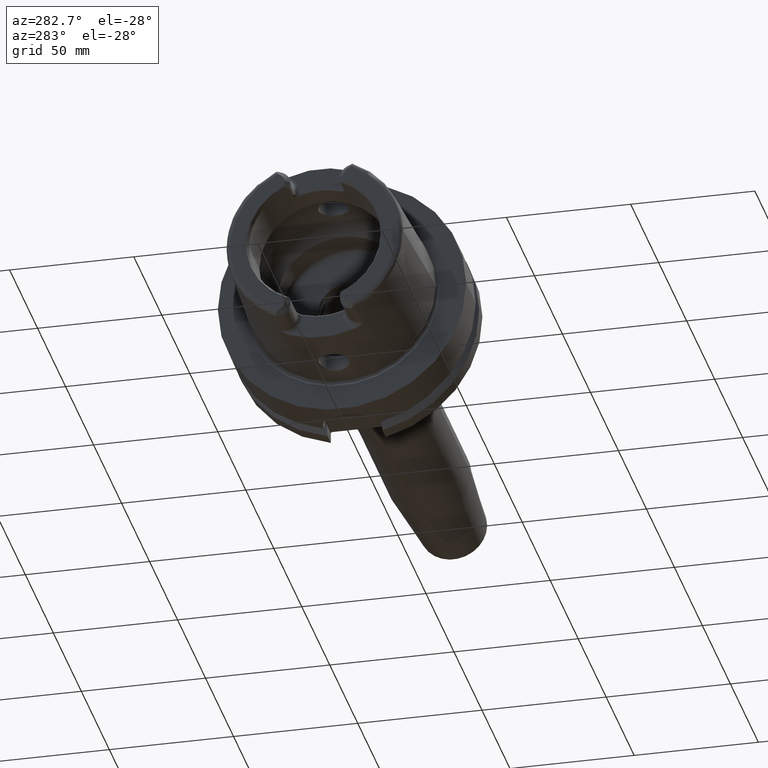
[diagram: clean part render]
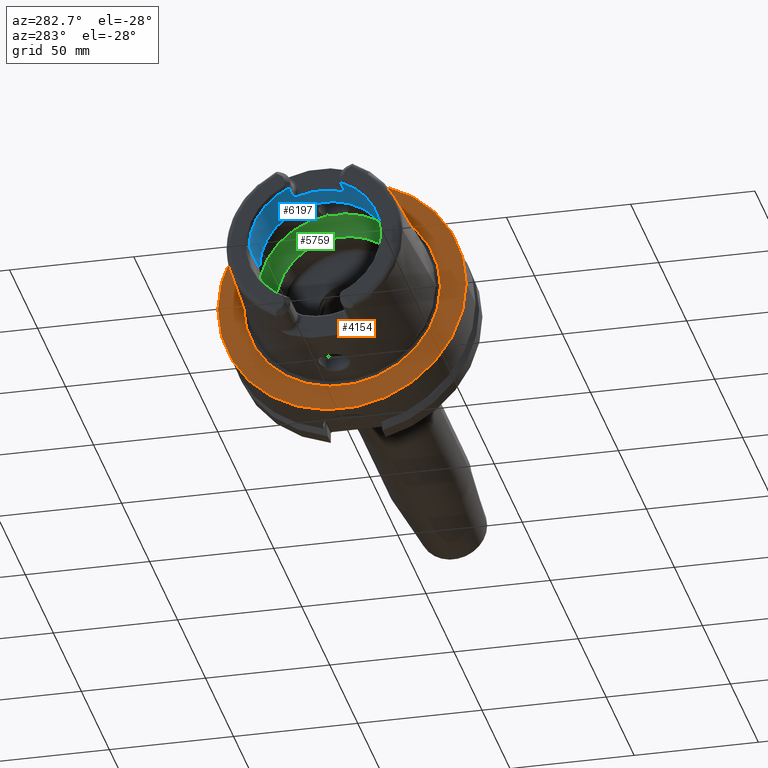
[diagram: same view with three faces highlighted in distinct colors, each labeled with its STEP entity id]
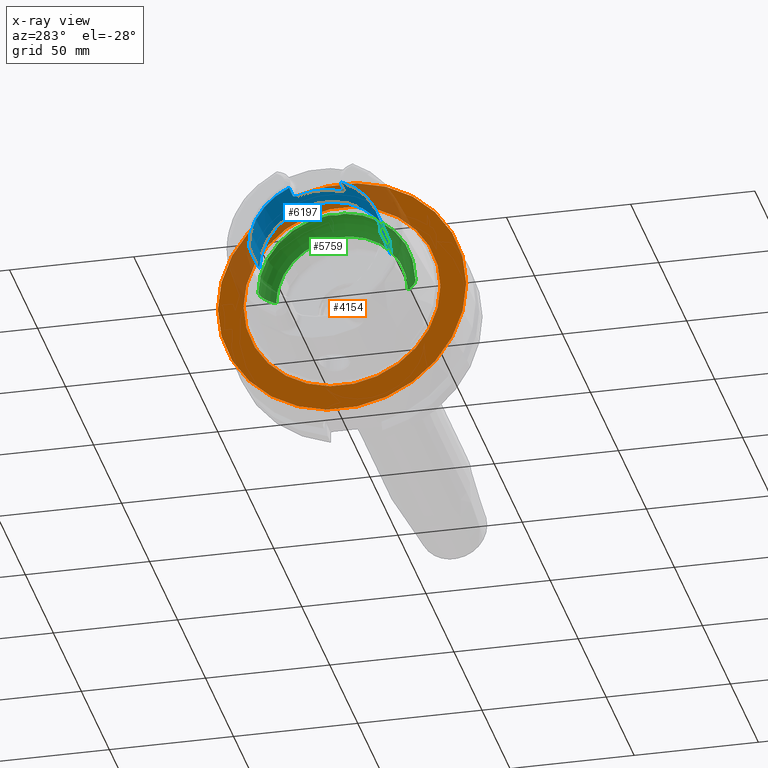
[diagram: x-ray of the same camera — body ghosted, the three highlighted faces saturated]
A machine part, auxiliary view with three faces highlighted in distinct colors.
The next image is the same camera in x-ray (body ghosted, the three faces saturated) — at least one of them is partly hidden behind the body in this view.
Their STEP definitions:

[orange] entity #4154 — the highlighted planar face has unit normal (1, 0, 0).
#905=CARTESIAN_POINT('',(2.842170943040E-14,0.E0,0.E0));
#906=DIRECTION('',(1.E0,0.E0,0.E0));
#907=DIRECTION('',(0.E0,1.E0,0.E0));
#908=AXIS2_PLACEMENT_3D('',#905,#906,#907);
#910=CARTESIAN_POINT('',(2.842170943040E-14,0.E0,0.E0));
#911=DIRECTION('',(-1.E0,0.E0,0.E0));
#912=DIRECTION('',(0.E0,1.E0,0.E0));
#913=AXIS2_PLACEMENT_3D('',#910,#911,#912);
#915=CARTESIAN_POINT('',(0.E0,0.E0,0.E0));
#916=DIRECTION('',(-1.E0,0.E0,0.E0));
#917=DIRECTION('',(0.E0,-1.E0,0.E0));
#918=AXIS2_PLACEMENT_3D('',#915,#916,#917);
#920=CARTESIAN_POINT('',(0.E0,0.E0,0.E0));
#921=DIRECTION('',(-1.E0,0.E0,0.E0));
#922=DIRECTION('',(0.E0,1.E0,0.E0));
#923=AXIS2_PLACEMENT_3D('',#920,#921,#922);
#2713=CARTESIAN_POINT('',(2.842170943040E-14,5.E1,0.E0));
#2714=CARTESIAN_POINT('',(2.842170943040E-14,-5.E1,0.E0));
#2715=VERTEX_POINT('',#2713);
#2716=VERTEX_POINT('',#2714);
#2741=CARTESIAN_POINT('',(0.E0,-3.963225E1,0.E0));
#2742=VERTEX_POINT('',#2741);
#2743=CARTESIAN_POINT('',(0.E0,3.963225E1,0.E0));
#2744=VERTEX_POINT('',#2743);
#4139=CARTESIAN_POINT('',(0.E0,0.E0,0.E0));
#4140=DIRECTION('',(1.E0,0.E0,0.E0));
#4141=DIRECTION('',(0.E0,-1.E0,0.E0));
#4142=AXIS2_PLACEMENT_3D('',#4139,#4140,#4141);
#4143=PLANE('',#4142);
#4145=ORIENTED_EDGE('',*,*,#4144,.T.);
#4147=ORIENTED_EDGE('',*,*,#4146,.F.);
#4148=EDGE_LOOP('',(#4145,#4147));
#4149=FACE_OUTER_BOUND('',#4148,.F.);
#4150=ORIENTED_EDGE('',*,*,#4134,.T.);
#4151=ORIENTED_EDGE('',*,*,#4118,.T.);
#4152=EDGE_LOOP('',(#4150,#4151));
#4153=FACE_BOUND('',#4152,.F.);
#4154=ADVANCED_FACE('',(#4149,#4153),#4143,.F.);
#909=CIRCLE('',#908,5.E1);
#914=CIRCLE('',#913,5.E1);
#919=CIRCLE('',#918,3.963225E1);
#924=CIRCLE('',#923,3.963225E1);
#4118=EDGE_CURVE('',#2744,#2742,#924,.T.);
#4134=EDGE_CURVE('',#2742,#2744,#919,.T.);
#4144=EDGE_CURVE('',#2715,#2716,#909,.T.);
#4146=EDGE_CURVE('',#2715,#2716,#914,.T.);

[blue] entity #6197 — the highlighted cylindrical surface (partial cylindrical patch) has radius 26.5 mm, axis along (1, 0, 0).
#165=CARTESIAN_POINT('',(-4.85E1,1.051E1,2.432673220965E1));
#167=CARTESIAN_POINT('',(-4.85E1,0.E0,0.E0));
#168=DIRECTION('',(1.E0,0.E0,0.E0));
#169=DIRECTION('',(0.E0,1.E0,0.E0));
#170=AXIS2_PLACEMENT_3D('',#167,#168,#169);
#187=CARTESIAN_POINT('',(-4.85E1,0.E0,0.E0));
#188=DIRECTION('',(1.E0,0.E0,0.E0));
#189=DIRECTION('',(0.E0,-3.966037735849E-1,9.179898947038E-1));
#190=AXIS2_PLACEMENT_3D('',#187,#188,#189);
#192=CARTESIAN_POINT('',(-4.85E1,-1.051E1,2.432673220965E1));
#513=DIRECTION('',(-1.E0,0.E0,0.E0));
#514=VECTOR('',#513,1.849662432703E1);
#515=CARTESIAN_POINT('',(-3.000337567297E1,2.65E1,0.E0));
#516=LINE('',#515,#514);
#522=DIRECTION('',(-1.E0,0.E0,0.E0));
#523=VECTOR('',#522,1.849662432703E1);
#524=CARTESIAN_POINT('',(-3.000337567297E1,-2.65E1,0.E0));
#525=LINE('',#524,#523);
#2496=DIRECTION('',(1.E0,0.E0,0.E0));
#2497=VECTOR('',#2496,6.380229667746E0);
#2498=CARTESIAN_POINT('',(-4.838022966775E1,1.039022966775E1,2.437812805470E1));
#2499=LINE('',#2498,#2497);
#2500=CARTESIAN_POINT('',(-3.971132486541E1,8.01E0,2.526044140549E1));
#2501=CARTESIAN_POINT('',(-3.970878365387E1,8.120563234658E0,2.522538218006E1));
#2502=CARTESIAN_POINT('',(-3.971906599640E1,8.340498761E0,2.515406323082E1));
#2503=CARTESIAN_POINT('',(-3.978267622202E1,8.672586520936E0,2.504149237513E1));
#2504=CARTESIAN_POINT('',(-3.989268945815E1,8.989467647893E0,2.492938353432E1));
#2505=CARTESIAN_POINT('',(-4.004052322956E1,9.277750297847E0,2.482340953473E1));
#2506=CARTESIAN_POINT('',(-4.022199090024E1,9.537479373845E0,2.472468297046E1));
#2507=CARTESIAN_POINT('',(-4.043924040036E1,9.773195748073E0,2.463237051391E1));
#2508=CARTESIAN_POINT('',(-4.069196362011E1,9.980705213938E0,2.454892857931E1));
#2509=CARTESIAN_POINT('',(-4.098453186625E1,1.015759575717E1,2.447617541728E1));
#2510=CARTESIAN_POINT('',(-4.132143240488E1,1.029570459017E1,2.441829554688E1));
#2511=CARTESIAN_POINT('',(-4.167918985613E1,1.037618705973E1,2.438412368561E1));
#2512=CARTESIAN_POINT('',(-4.189481839478E1,1.039022966775E1,2.437812805470E1));
#2513=CARTESIAN_POINT('',(-4.2E1,1.039022966775E1,2.437812805470E1));
#2515=CARTESIAN_POINT('',(-3.971132486541E1,-8.01E0,2.526044140549E1));
#2516=CARTESIAN_POINT('',(-3.971132486541E1,-7.271271578955E0,
2.549468967366E1));
#2517=CARTESIAN_POINT('',(-3.971132486546E1,-5.773250992792E0,
2.589833317849E1));
#2518=CARTESIAN_POINT('',(-3.971132486544E1,-3.481810319461E0,
2.630458298809E1));
#2519=CARTESIAN_POINT('',(-3.971132486544E1,-1.163586982585E0,
2.650849211583E1));
#2520=CARTESIAN_POINT('',(-3.971132486544E1,1.163586982585E0,2.650849211583E1));
#2521=CARTESIAN_POINT('',(-3.971132486544E1,3.481810319461E0,2.630458298809E1));
#2522=CARTESIAN_POINT('',(-3.971132486546E1,5.773250992791E0,2.589833317849E1));
#2523=CARTESIAN_POINT('',(-3.971132486541E1,7.271271578958E0,2.549468967366E1));
#2524=CARTESIAN_POINT('',(-3.971132486541E1,8.01E0,2.526044140549E1));
#2526=CARTESIAN_POINT('',(-4.2E1,-1.039022966775E1,2.437812805470E1));
#2527=CARTESIAN_POINT('',(-4.189375760304E1,-1.039022966775E1,
2.437812805470E1));
#2528=CARTESIAN_POINT('',(-4.167635124759E1,-1.037592175927E1,
2.438423721529E1));
#2529=CARTESIAN_POINT('',(-4.131623052643E1,-1.029415408513E1,
2.441895189414E1));
#2530=CARTESIAN_POINT('',(-4.097947032639E1,-1.015497495082E1,
2.447726388108E1));
#2531=CARTESIAN_POINT('',(-4.068903934051E1,-9.978495762119E0,
2.454982411868E1));
#2532=CARTESIAN_POINT('',(-4.043805179144E1,-9.771970406757E0,
2.463285308238E1));
#2533=CARTESIAN_POINT('',(-4.022178538202E1,-9.537157318169E0,
2.472480442904E1));
#2534=CARTESIAN_POINT('',(-4.004048499348E1,-9.277715471543E0,
2.482342368645E1));
#2535=CARTESIAN_POINT('',(-3.989237648633E1,-8.988811706632E0,
2.492962282131E1));
#2536=CARTESIAN_POINT('',(-3.978230284625E1,-8.671343229942E0,
2.504192722240E1));
#2537=CARTESIAN_POINT('',(-3.971884880625E1,-8.338547582645E0,
2.515470883480E1));
#2538=CARTESIAN_POINT('',(-3.970880260289E1,-8.119738798873E0,
2.522564360584E1));
#2539=CARTESIAN_POINT('',(-3.971132486541E1,-8.01E0,2.526044140549E1));
#2541=DIRECTION('',(1.E0,0.E0,0.E0));
#2542=VECTOR('',#2541,6.380229667746E0);
#2543=CARTESIAN_POINT('',(-4.838022966775E1,-1.039022966775E1,
2.437812805470E1));
#2544=LINE('',#2543,#2542);
#2545=CARTESIAN_POINT('',(-4.838022966775E1,-1.039022966775E1,
2.437812805470E1));
#2546=CARTESIAN_POINT('',(-4.842017594144E1,-1.043017594144E1,
2.436110250799E1));
#2547=CARTESIAN_POINT('',(-4.846009940760E1,-1.047009940760E1,
2.434397066250E1));
#2548=CARTESIAN_POINT('',(-4.85E1,-1.051E1,2.432673220965E1));
#2550=CARTESIAN_POINT('',(-3.000337567297E1,0.E0,0.E0));
#2551=DIRECTION('',(1.E0,0.E0,0.E0));
#2552=DIRECTION('',(0.E0,1.E0,0.E0));
#2553=AXIS2_PLACEMENT_3D('',#2550,#2551,#2552);
#2555=CARTESIAN_POINT('',(-4.85E1,1.051E1,2.432673220965E1));
#2556=CARTESIAN_POINT('',(-4.846009940760E1,1.047009940760E1,2.434397066250E1));
#2557=CARTESIAN_POINT('',(-4.842017594144E1,1.043017594144E1,2.436110250799E1));
#2558=CARTESIAN_POINT('',(-4.838022966775E1,1.039022966775E1,2.437812805470E1));
#2761=CARTESIAN_POINT('',(-3.000337567297E1,2.65E1,0.E0));
#2762=VERTEX_POINT('',#2761);
#2763=CARTESIAN_POINT('',(-4.85E1,2.65E1,0.E0));
#2764=VERTEX_POINT('',#2763);
#2773=CARTESIAN_POINT('',(-3.000337567297E1,-2.65E1,0.E0));
#2774=VERTEX_POINT('',#2773);
#2775=CARTESIAN_POINT('',(-4.85E1,-2.65E1,0.E0));
#2776=VERTEX_POINT('',#2775);
#2817=VERTEX_POINT('',#165);
#2832=VERTEX_POINT('',#192);
#2845=CARTESIAN_POINT('',(-4.2E1,1.039022966775E1,2.437812805470E1));
#2846=VERTEX_POINT('',#2845);
#2847=CARTESIAN_POINT('',(-3.971132486541E1,8.01E0,2.526044140549E1));
#2848=VERTEX_POINT('',#2847);
#2849=CARTESIAN_POINT('',(-4.2E1,-1.039022966775E1,2.437812805470E1));
#2850=VERTEX_POINT('',#2849);
#2851=CARTESIAN_POINT('',(-3.971132486541E1,-8.01E0,2.526044140549E1));
#2852=VERTEX_POINT('',#2851);
#2853=CARTESIAN_POINT('',(-4.838022966775E1,1.039022966775E1,2.437812805470E1));
#2854=VERTEX_POINT('',#2853);
#2855=CARTESIAN_POINT('',(-4.838022966775E1,-1.039022966775E1,
2.437812805470E1));
#2856=VERTEX_POINT('',#2855);
#6173=CARTESIAN_POINT('',(-5.3125E1,0.E0,0.E0));
#6174=DIRECTION('',(1.E0,0.E0,0.E0));
#6175=DIRECTION('',(0.E0,-1.E0,0.E0));
#6176=AXIS2_PLACEMENT_3D('',#6173,#6174,#6175);
#6177=CYLINDRICAL_SURFACE('',#6176,2.65E1);
#6178=ORIENTED_EDGE('',*,*,#3375,.T.);
#6180=ORIENTED_EDGE('',*,*,#6179,.F.);
#6182=ORIENTED_EDGE('',*,*,#6181,.F.);
#6184=ORIENTED_EDGE('',*,*,#6183,.F.);
#6186=ORIENTED_EDGE('',*,*,#6185,.F.);
#6188=ORIENTED_EDGE('',*,*,#6187,.T.);
#6189=ORIENTED_EDGE('',*,*,#3340,.T.);
#6190=ORIENTED_EDGE('',*,*,#3602,.F.);
#6191=ORIENTED_EDGE('',*,*,#6153,.F.);
#6192=ORIENTED_EDGE('',*,*,#3598,.T.);
#6193=ORIENTED_EDGE('',*,*,#3324,.T.);
#6194=ORIENTED_EDGE('',*,*,#3355,.T.);
#6195=EDGE_LOOP('',(#6178,#6180,#6182,#6184,#6186,#6188,#6189,#6190,#6191,#6192,
#6193,#6194));
#6196=FACE_OUTER_BOUND('',#6195,.F.);
#6197=ADVANCED_FACE('',(#6196),#6177,.F.);
#171=CIRCLE('',#170,2.65E1);
#191=CIRCLE('',#190,2.65E1);
#2514=B_SPLINE_CURVE_WITH_KNOTS('',3,(#2500,#2501,#2502,#2503,#2504,#2505,#2506,
#2507,#2508,#2509,#2510,#2511,#2512,#2513),.UNSPECIFIED.,.F.,.F.,(4,1,1,1,1,1,1,
1,1,1,1,4),(0.E0,9.090909090909E-2,1.818181818182E-1,2.727272727273E-1,
3.636363636364E-1,4.545454545455E-1,5.454545454545E-1,6.363636363636E-1,
7.272727272727E-1,8.181818181818E-1,9.090909090909E-1,1.E0),.UNSPECIFIED.);
#2525=B_SPLINE_CURVE_WITH_KNOTS('',3,(#2515,#2516,#2517,#2518,#2519,#2520,#2521,
#2522,#2523,#2524),.UNSPECIFIED.,.F.,.F.,(4,1,1,1,1,1,1,4),(0.E0,
1.428571428571E-1,2.857142857143E-1,4.285714285714E-1,5.714285714286E-1,
7.142857142857E-1,8.571428571429E-1,1.E0),.UNSPECIFIED.);
#2540=B_SPLINE_CURVE_WITH_KNOTS('',3,(#2526,#2527,#2528,#2529,#2530,#2531,#2532,
#2533,#2534,#2535,#2536,#2537,#2538,#2539),.UNSPECIFIED.,.F.,.F.,(4,1,1,1,1,1,1,
1,1,1,1,4),(0.E0,9.090909090909E-2,1.818181818182E-1,2.727272727273E-1,
3.636363636364E-1,4.545454545455E-1,5.454545454545E-1,6.363636363636E-1,
7.272727272727E-1,8.181818181818E-1,9.090909090909E-1,1.E0),.UNSPECIFIED.);
#2549=B_SPLINE_CURVE_WITH_KNOTS('',3,(#2545,#2546,#2547,#2548),.UNSPECIFIED.,
.F.,.F.,(4,4),(0.E0,1.E0),.UNSPECIFIED.);
#2554=CIRCLE('',#2553,2.65E1);
#2559=B_SPLINE_CURVE_WITH_KNOTS('',3,(#2555,#2556,#2557,#2558),.UNSPECIFIED.,
.F.,.F.,(4,4),(0.E0,1.E0),.UNSPECIFIED.);
#3324=EDGE_CURVE('',#2764,#2817,#171,.T.);
#3340=EDGE_CURVE('',#2832,#2776,#191,.T.);
#3355=EDGE_CURVE('',#2817,#2854,#2559,.T.);
#3375=EDGE_CURVE('',#2854,#2846,#2499,.T.);
#3598=EDGE_CURVE('',#2762,#2764,#516,.T.);
#3602=EDGE_CURVE('',#2774,#2776,#525,.T.);
#6153=EDGE_CURVE('',#2762,#2774,#2554,.T.);
#6179=EDGE_CURVE('',#2848,#2846,#2514,.T.);
#6181=EDGE_CURVE('',#2852,#2848,#2525,.T.);
#6183=EDGE_CURVE('',#2850,#2852,#2540,.T.);
#6185=EDGE_CURVE('',#2856,#2850,#2544,.T.);
#6187=EDGE_CURVE('',#2856,#2832,#2549,.T.);

[green] entity #5759 — the highlighted toroidal blend (fillet) surface has major radius 19.5 mm and minor (blend) radius 12 mm.
#2082=CARTESIAN_POINT('',(-9.E0,0.E0,3.147008518506E1));
#2083=CARTESIAN_POINT('',(-9.E0,2.141252053900E-1,3.147008518506E1));
#2084=CARTESIAN_POINT('',(-9.022897579641E0,6.436731047292E-1,
3.146736073712E1));
#2085=CARTESIAN_POINT('',(-9.127427069178E0,1.286248325661E0,3.145454181001E1));
#2086=CARTESIAN_POINT('',(-9.301031145484E0,1.913730198969E0,3.143197920586E1));
#2087=CARTESIAN_POINT('',(-9.539946842554E0,2.515068696018E0,3.139832080387E1));
#2088=CARTESIAN_POINT('',(-9.738529982809E0,2.891645116602E0,3.136752560017E1));
#2089=CARTESIAN_POINT('',(-9.846794344809E0,3.073185883624E0,3.134972932139E1));
#2091=CARTESIAN_POINT('',(-9.846794344809E0,-3.073185883624E0,
3.134972932139E1));
#2092=CARTESIAN_POINT('',(-9.738534471789E0,-2.891652643851E0,
3.136752486228E1));
#2093=CARTESIAN_POINT('',(-9.539946477828E0,-2.515078628379E0,
3.139832107651E1));
#2094=CARTESIAN_POINT('',(-9.300974895981E0,-1.913573808680E0,
3.143198691417E1));
#2095=CARTESIAN_POINT('',(-9.127396838585E0,-1.286102505522E0,
3.145454553504E1));
#2096=CARTESIAN_POINT('',(-9.022886850943E0,-6.435548392987E-1,
3.146736203025E1));
#2097=CARTESIAN_POINT('',(-9.E0,-2.140793620984E-1,3.147008518506E1));
#2098=CARTESIAN_POINT('',(-9.E0,0.E0,3.147008518506E1));
#2100=CARTESIAN_POINT('',(-1.E-1,0.E0,0.E0));
#2101=DIRECTION('',(1.E0,0.E0,0.E0));
#2102=DIRECTION('',(0.E0,1.E0,0.E0));
#2103=AXIS2_PLACEMENT_3D('',#2100,#2101,#2102);
#2129=CARTESIAN_POINT('',(-9.846794344809E0,0.E0,0.E0));
#2130=DIRECTION('',(1.E0,0.E0,0.E0));
#2131=DIRECTION('',(0.E0,1.E0,0.E0));
#2132=AXIS2_PLACEMENT_3D('',#2129,#2130,#2131);
#2134=CARTESIAN_POINT('',(-9.846794344809E0,0.E0,0.E0));
#2135=DIRECTION('',(1.E0,0.E0,0.E0));
#2136=DIRECTION('',(0.E0,-9.756145662299E-2,9.952295022665E-1));
#2137=AXIS2_PLACEMENT_3D('',#2134,#2135,#2136);
#2238=CARTESIAN_POINT('',(-9.846794344809E0,1.95E1,0.E0));
#2239=DIRECTION('',(0.E0,0.E0,1.E0));
#2240=DIRECTION('',(8.122328620674E-1,5.833333333333E-1,0.E0));
#2241=AXIS2_PLACEMENT_3D('',#2238,#2239,#2240);
#2248=CARTESIAN_POINT('',(-9.846794344809E0,-1.95E1,0.E0));
#2249=DIRECTION('',(0.E0,0.E0,-1.E0));
#2250=DIRECTION('',(8.122328620674E-1,-5.833333333333E-1,0.E0));
#2251=AXIS2_PLACEMENT_3D('',#2248,#2249,#2250);
#2753=CARTESIAN_POINT('',(-1.E-1,2.65E1,0.E0));
#2754=VERTEX_POINT('',#2753);
#2755=CARTESIAN_POINT('',(-9.846794344809E0,3.15E1,0.E0));
#2756=VERTEX_POINT('',#2755);
#2765=CARTESIAN_POINT('',(-1.E-1,-2.65E1,0.E0));
#2766=VERTEX_POINT('',#2765);
#2767=CARTESIAN_POINT('',(-9.846794344809E0,-3.15E1,0.E0));
#2768=VERTEX_POINT('',#2767);
#2934=VERTEX_POINT('',#2082);
#2935=VERTEX_POINT('',#2089);
#2936=VERTEX_POINT('',#2091);
#5740=CARTESIAN_POINT('',(-9.846794344809E0,0.E0,0.E0));
#5741=DIRECTION('',(1.E0,0.E0,0.E0));
#5742=DIRECTION('',(0.E0,-1.E0,0.E0));
#5743=AXIS2_PLACEMENT_3D('',#5740,#5741,#5742);
#5744=TOROIDAL_SURFACE('',#5743,1.95E1,1.2E1);
#5745=ORIENTED_EDGE('',*,*,#5717,.F.);
#5746=ORIENTED_EDGE('',*,*,#5443,.F.);
#5748=ORIENTED_EDGE('',*,*,#5747,.T.);
#5750=ORIENTED_EDGE('',*,*,#5749,.F.);
#5752=ORIENTED_EDGE('',*,*,#5751,.F.);
#5754=ORIENTED_EDGE('',*,*,#5753,.T.);
#5756=ORIENTED_EDGE('',*,*,#5755,.T.);
#5757=EDGE_LOOP('',(#5745,#5746,#5748,#5750,#5752,#5754,#5756));
#5758=FACE_OUTER_BOUND('',#5757,.F.);
#5759=ADVANCED_FACE('',(#5758),#5744,.F.);
#2090=B_SPLINE_CURVE_WITH_KNOTS('',3,(#2082,#2083,#2084,#2085,#2086,#2087,#2088,
#2089),.UNSPECIFIED.,.F.,.F.,(4,1,1,1,1,4),(0.E0,2.E-1,4.E-1,6.E-1,8.E-1,1.E0),
.UNSPECIFIED.);
#2099=B_SPLINE_CURVE_WITH_KNOTS('',3,(#2091,#2092,#2093,#2094,#2095,#2096,#2097,
#2098),.UNSPECIFIED.,.F.,.F.,(4,1,1,1,1,4),(0.E0,2.E-1,4.E-1,6.E-1,8.E-1,1.E0),
.UNSPECIFIED.);
#2104=CIRCLE('',#2103,2.65E1);
#2133=CIRCLE('',#2132,3.15E1);
#2138=CIRCLE('',#2137,3.15E1);
#2242=CIRCLE('',#2241,1.2E1);
#2252=CIRCLE('',#2251,1.2E1);
#5443=EDGE_CURVE('',#2936,#2934,#2099,.T.);
#5717=EDGE_CURVE('',#2934,#2935,#2090,.T.);
#5747=EDGE_CURVE('',#2936,#2768,#2138,.T.);
#5749=EDGE_CURVE('',#2766,#2768,#2252,.T.);
#5751=EDGE_CURVE('',#2754,#2766,#2104,.T.);
#5753=EDGE_CURVE('',#2754,#2756,#2242,.T.);
#5755=EDGE_CURVE('',#2756,#2935,#2133,.T.);